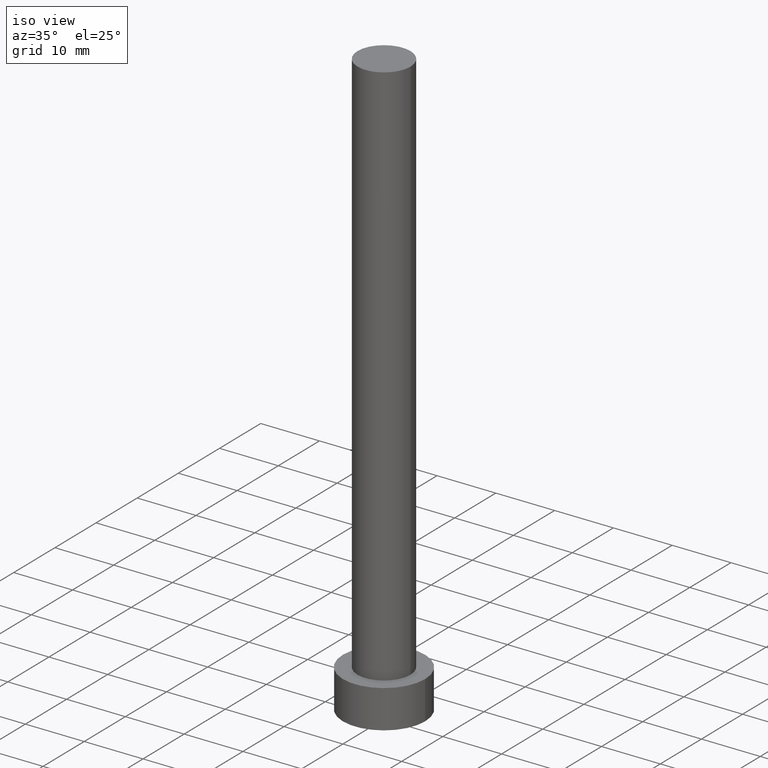
[diagram: clean part render]
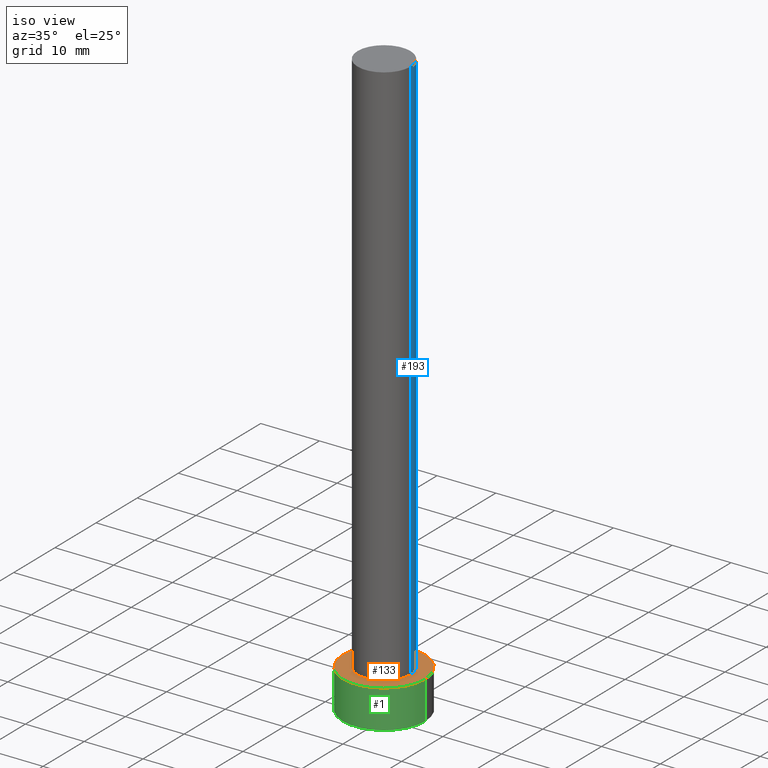
[diagram: same view with three faces highlighted in distinct colors, each labeled with its STEP entity id]
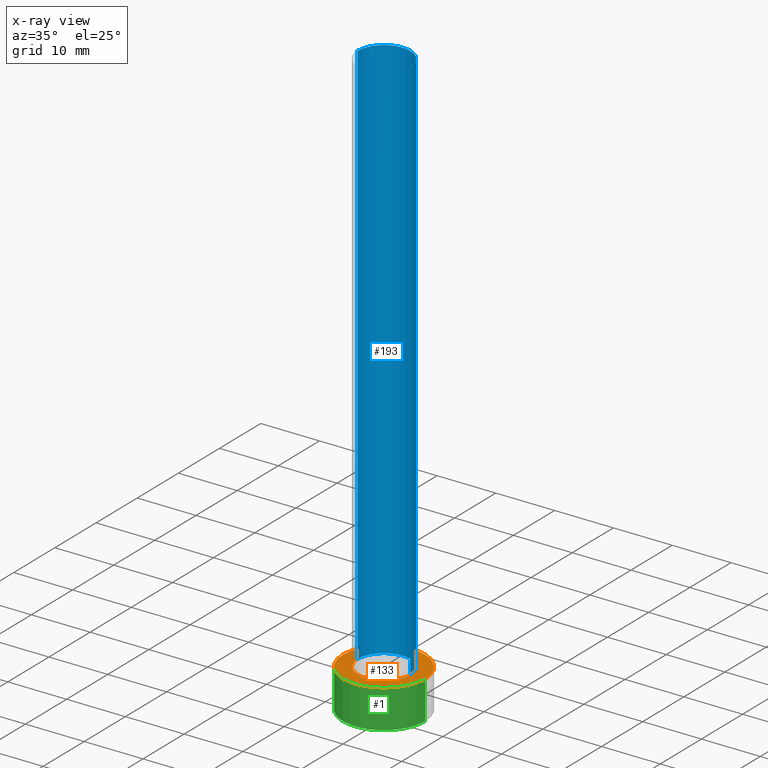
[diagram: x-ray of the same camera — body ghosted, the three highlighted faces saturated]
A machine part, iso view with three faces highlighted in distinct colors.
The next image is the same camera in x-ray (body ghosted, the three faces saturated) — at least one of them is partly hidden behind the body in this view.
Their STEP definitions:

[orange] entity #133 — the highlighted planar face has unit normal (0, 0, 1).
#10 = CARTESIAN_POINT ( 'NONE',  ( 4.500000000000000888, 5.510910596163089556E-16, 6.500000000000000000 ) ) ;
#13 = AXIS2_PLACEMENT_3D ( 'NONE', #38, #57, #78 ) ;
#19 = AXIS2_PLACEMENT_3D ( 'NONE', #41, #100, #137 ) ;
#30 = PLANE ( 'NONE',  #121 ) ;
#38 = CARTESIAN_POINT ( 'NONE',  ( 0.000000000000000000, 0.000000000000000000, 6.500000000000000000 ) ) ;
#41 = CARTESIAN_POINT ( 'NONE',  ( 0.000000000000000000, 0.000000000000000000, 6.500000000000000000 ) ) ;
#55 = CARTESIAN_POINT ( 'NONE',  ( 7.000000000000000000, 8.572527594031471218E-16, 6.500000000000000000 ) ) ;
#57 = DIRECTION ( 'NONE',  ( 0.000000000000000000, 0.000000000000000000, 1.000000000000000000 ) ) ;
#62 = ORIENTED_EDGE ( 'NONE', *, *, #230, .F. ) ;
#66 = VERTEX_POINT ( 'NONE', #10 ) ;
#67 = DIRECTION ( 'NONE',  ( 1.000000000000000000, 0.000000000000000000, 0.000000000000000000 ) ) ;
#71 = DIRECTION ( 'NONE',  ( 0.000000000000000000, 0.000000000000000000, 1.000000000000000000 ) ) ;
#74 = FACE_BOUND ( 'NONE', #107, .T. ) ;
#77 = CIRCLE ( 'NONE', #153, 4.500000000000000888 ) ;
#78 = DIRECTION ( 'NONE',  ( 1.000000000000000000, 0.000000000000000000, 0.000000000000000000 ) ) ;
#85 = AXIS2_PLACEMENT_3D ( 'NONE', #237, #185, #67 ) ;
#86 = ORIENTED_EDGE ( 'NONE', *, *, #88, .F. ) ;
#88 = EDGE_CURVE ( 'NONE', #66, #158, #77, .T. ) ;
#90 = DIRECTION ( 'NONE',  ( 0.000000000000000000, 0.000000000000000000, 1.000000000000000000 ) ) ;
#97 = FACE_OUTER_BOUND ( 'NONE', #141, .T. ) ;
#100 = DIRECTION ( 'NONE',  ( 0.000000000000000000, 0.000000000000000000, 1.000000000000000000 ) ) ;
#107 = EDGE_LOOP ( 'NONE', ( #62, #86 ) ) ;
#110 = CARTESIAN_POINT ( 'NONE',  ( 0.000000000000000000, 0.000000000000000000, 6.500000000000000000 ) ) ;
#112 = ORIENTED_EDGE ( 'NONE', *, *, #191, .T. ) ;
#121 = AXIS2_PLACEMENT_3D ( 'NONE', #110, #71, #225 ) ;
#123 = CIRCLE ( 'NONE', #19, 7.000000000000000000 ) ;
#133 = ADVANCED_FACE ( 'NONE', ( #74, #97 ), #30, .T. ) ;
#137 = DIRECTION ( 'NONE',  ( 1.000000000000000000, 0.000000000000000000, 0.000000000000000000 ) ) ;
#141 = EDGE_LOOP ( 'NONE', ( #238, #112 ) ) ;
#144 = VERTEX_POINT ( 'NONE', #244 ) ;
#153 = AXIS2_PLACEMENT_3D ( 'NONE', #240, #90, #197 ) ;
#158 = VERTEX_POINT ( 'NONE', #215 ) ;
#160 = VERTEX_POINT ( 'NONE', #55 ) ;
#176 = CIRCLE ( 'NONE', #85, 7.000000000000000000 ) ;
#185 = DIRECTION ( 'NONE',  ( 0.000000000000000000, 0.000000000000000000, 1.000000000000000000 ) ) ;
#191 = EDGE_CURVE ( 'NONE', #160, #144, #176, .T. ) ;
#197 = DIRECTION ( 'NONE',  ( 1.000000000000000000, 0.000000000000000000, 0.000000000000000000 ) ) ;
#215 = CARTESIAN_POINT ( 'NONE',  ( -4.500000000000000888, 0.000000000000000000, 6.500000000000000000 ) ) ;
#225 = DIRECTION ( 'NONE',  ( 1.000000000000000000, 0.000000000000000000, -0.000000000000000000 ) ) ;
#230 = EDGE_CURVE ( 'NONE', #158, #66, #250, .T. ) ;
#237 = CARTESIAN_POINT ( 'NONE',  ( 0.000000000000000000, 0.000000000000000000, 6.500000000000000000 ) ) ;
#238 = ORIENTED_EDGE ( 'NONE', *, *, #251, .T. ) ;
#240 = CARTESIAN_POINT ( 'NONE',  ( 0.000000000000000000, 0.000000000000000000, 6.500000000000000000 ) ) ;
#244 = CARTESIAN_POINT ( 'NONE',  ( -7.000000000000000000, 0.000000000000000000, 6.500000000000000000 ) ) ;
#250 = CIRCLE ( 'NONE', #13, 4.500000000000000888 ) ;
#251 = EDGE_CURVE ( 'NONE', #144, #160, #123, .T. ) ;

[blue] entity #193 — the highlighted cylindrical surface (edge-blend (fillet) strip) has radius 4.5 mm, axis along (-0, -0, -1).
#10 = CARTESIAN_POINT ( 'NONE',  ( 4.500000000000000888, 5.510910596163089556E-16, 6.500000000000000000 ) ) ;
#34 = VERTEX_POINT ( 'NONE', #65 ) ;
#35 = DIRECTION ( 'NONE',  ( -1.000000000000000000, 0.000000000000000000, 0.000000000000000000 ) ) ;
#37 = AXIS2_PLACEMENT_3D ( 'NONE', #218, #194, #195 ) ;
#42 = CIRCLE ( 'NONE', #37, 4.500000000000000888 ) ;
#45 = EDGE_CURVE ( 'NONE', #211, #34, #42, .T. ) ;
#47 = ORIENTED_EDGE ( 'NONE', *, *, #163, .T. ) ;
#51 = LINE ( 'NONE', #199, #102 ) ;
#53 = AXIS2_PLACEMENT_3D ( 'NONE', #165, #200, #35 ) ;
#65 = CARTESIAN_POINT ( 'NONE',  ( -4.500000000000000888, 0.000000000000000000, 100.0000000000000000 ) ) ;
#66 = VERTEX_POINT ( 'NONE', #10 ) ;
#73 = VECTOR ( 'NONE', #132, 1000.000000000000000 ) ;
#77 = CIRCLE ( 'NONE', #153, 4.500000000000000888 ) ;
#87 = CARTESIAN_POINT ( 'NONE',  ( 4.500000000000000888, 5.510910596163089556E-16, 100.0000000000000000 ) ) ;
#88 = EDGE_CURVE ( 'NONE', #66, #158, #77, .T. ) ;
#90 = DIRECTION ( 'NONE',  ( 0.000000000000000000, 0.000000000000000000, 1.000000000000000000 ) ) ;
#95 = FACE_OUTER_BOUND ( 'NONE', #241, .T. ) ;
#102 = VECTOR ( 'NONE', #116, 1000.000000000000000 ) ;
#116 = DIRECTION ( 'NONE',  ( -0.000000000000000000, -0.000000000000000000, -1.000000000000000000 ) ) ;
#128 = LINE ( 'NONE', #150, #73 ) ;
#132 = DIRECTION ( 'NONE',  ( -0.000000000000000000, -0.000000000000000000, -1.000000000000000000 ) ) ;
#147 = CYLINDRICAL_SURFACE ( 'NONE', #53, 4.500000000000000888 ) ;
#150 = CARTESIAN_POINT ( 'NONE',  ( -4.500000000000000888, 0.000000000000000000, 100.0000000000000000 ) ) ;
#153 = AXIS2_PLACEMENT_3D ( 'NONE', #240, #90, #197 ) ;
#158 = VERTEX_POINT ( 'NONE', #215 ) ;
#163 = EDGE_CURVE ( 'NONE', #211, #66, #51, .T. ) ;
#165 = CARTESIAN_POINT ( 'NONE',  ( 0.000000000000000000, 0.000000000000000000, 100.0000000000000000 ) ) ;
#174 = EDGE_CURVE ( 'NONE', #34, #158, #128, .T. ) ;
#179 = ORIENTED_EDGE ( 'NONE', *, *, #45, .F. ) ;
#181 = ORIENTED_EDGE ( 'NONE', *, *, #174, .F. ) ;
#193 = ADVANCED_FACE ( 'NONE', ( #95 ), #147, .T. ) ;
#194 = DIRECTION ( 'NONE',  ( 0.000000000000000000, 0.000000000000000000, 1.000000000000000000 ) ) ;
#195 = DIRECTION ( 'NONE',  ( 1.000000000000000000, 0.000000000000000000, 0.000000000000000000 ) ) ;
#196 = ORIENTED_EDGE ( 'NONE', *, *, #88, .T. ) ;
#197 = DIRECTION ( 'NONE',  ( 1.000000000000000000, 0.000000000000000000, 0.000000000000000000 ) ) ;
#199 = CARTESIAN_POINT ( 'NONE',  ( 4.500000000000000888, 5.510910596163089556E-16, 100.0000000000000000 ) ) ;
#200 = DIRECTION ( 'NONE',  ( -0.000000000000000000, -0.000000000000000000, -1.000000000000000000 ) ) ;
#211 = VERTEX_POINT ( 'NONE', #87 ) ;
#215 = CARTESIAN_POINT ( 'NONE',  ( -4.500000000000000888, 0.000000000000000000, 6.500000000000000000 ) ) ;
#218 = CARTESIAN_POINT ( 'NONE',  ( 0.000000000000000000, 0.000000000000000000, 100.0000000000000000 ) ) ;
#240 = CARTESIAN_POINT ( 'NONE',  ( 0.000000000000000000, 0.000000000000000000, 6.500000000000000000 ) ) ;
#241 = EDGE_LOOP ( 'NONE', ( #179, #47, #196, #181 ) ) ;

[green] entity #1 — the highlighted cylindrical surface (partial cylindrical patch) has radius 7 mm, axis along (-0, -0, -1).
#1 = ADVANCED_FACE ( 'NONE', ( #166 ), #96, .T. ) ;
#2 = VECTOR ( 'NONE', #242, 1000.000000000000000 ) ;
#4 = ORIENTED_EDGE ( 'NONE', *, *, #202, .T. ) ;
#19 = AXIS2_PLACEMENT_3D ( 'NONE', #41, #100, #137 ) ;
#25 = EDGE_CURVE ( 'NONE', #160, #140, #161, .T. ) ;
#27 = CIRCLE ( 'NONE', #135, 7.000000000000000000 ) ;
#28 = ORIENTED_EDGE ( 'NONE', *, *, #157, .T. ) ;
#33 = CARTESIAN_POINT ( 'NONE',  ( -7.000000000000000000, 0.000000000000000000, 6.500000000000000000 ) ) ;
#41 = CARTESIAN_POINT ( 'NONE',  ( 0.000000000000000000, 0.000000000000000000, 6.500000000000000000 ) ) ;
#49 = ORIENTED_EDGE ( 'NONE', *, *, #25, .F. ) ;
#55 = CARTESIAN_POINT ( 'NONE',  ( 7.000000000000000000, 8.572527594031471218E-16, 6.500000000000000000 ) ) ;
#72 = DIRECTION ( 'NONE',  ( -1.000000000000000000, 0.000000000000000000, 0.000000000000000000 ) ) ;
#92 = CARTESIAN_POINT ( 'NONE',  ( 7.000000000000000000, 8.572527594031471218E-16, 6.500000000000000000 ) ) ;
#96 = CYLINDRICAL_SURFACE ( 'NONE', #129, 7.000000000000000000 ) ;
#100 = DIRECTION ( 'NONE',  ( 0.000000000000000000, 0.000000000000000000, 1.000000000000000000 ) ) ;
#113 = CARTESIAN_POINT ( 'NONE',  ( -7.000000000000000000, 0.000000000000000000, 0.000000000000000000 ) ) ;
#114 = EDGE_LOOP ( 'NONE', ( #49, #221, #28, #4 ) ) ;
#123 = CIRCLE ( 'NONE', #19, 7.000000000000000000 ) ;
#125 = DIRECTION ( 'NONE',  ( 1.000000000000000000, 0.000000000000000000, 0.000000000000000000 ) ) ;
#129 = AXIS2_PLACEMENT_3D ( 'NONE', #243, #149, #72 ) ;
#135 = AXIS2_PLACEMENT_3D ( 'NONE', #239, #186, #125 ) ;
#137 = DIRECTION ( 'NONE',  ( 1.000000000000000000, 0.000000000000000000, 0.000000000000000000 ) ) ;
#140 = VERTEX_POINT ( 'NONE', #183 ) ;
#142 = DIRECTION ( 'NONE',  ( -0.000000000000000000, -0.000000000000000000, -1.000000000000000000 ) ) ;
#144 = VERTEX_POINT ( 'NONE', #244 ) ;
#145 = LINE ( 'NONE', #33, #205 ) ;
#149 = DIRECTION ( 'NONE',  ( -0.000000000000000000, -0.000000000000000000, -1.000000000000000000 ) ) ;
#157 = EDGE_CURVE ( 'NONE', #144, #184, #145, .T. ) ;
#160 = VERTEX_POINT ( 'NONE', #55 ) ;
#161 = LINE ( 'NONE', #92, #2 ) ;
#166 = FACE_OUTER_BOUND ( 'NONE', #114, .T. ) ;
#183 = CARTESIAN_POINT ( 'NONE',  ( 7.000000000000000000, 8.572527594031471218E-16, 0.000000000000000000 ) ) ;
#184 = VERTEX_POINT ( 'NONE', #113 ) ;
#186 = DIRECTION ( 'NONE',  ( 0.000000000000000000, 0.000000000000000000, 1.000000000000000000 ) ) ;
#202 = EDGE_CURVE ( 'NONE', #184, #140, #27, .T. ) ;
#205 = VECTOR ( 'NONE', #142, 1000.000000000000000 ) ;
#221 = ORIENTED_EDGE ( 'NONE', *, *, #251, .F. ) ;
#239 = CARTESIAN_POINT ( 'NONE',  ( 0.000000000000000000, 0.000000000000000000, 0.000000000000000000 ) ) ;
#242 = DIRECTION ( 'NONE',  ( -0.000000000000000000, -0.000000000000000000, -1.000000000000000000 ) ) ;
#243 = CARTESIAN_POINT ( 'NONE',  ( 0.000000000000000000, 0.000000000000000000, 6.500000000000000000 ) ) ;
#244 = CARTESIAN_POINT ( 'NONE',  ( -7.000000000000000000, 0.000000000000000000, 6.500000000000000000 ) ) ;
#251 = EDGE_CURVE ( 'NONE', #144, #160, #123, .T. ) ;